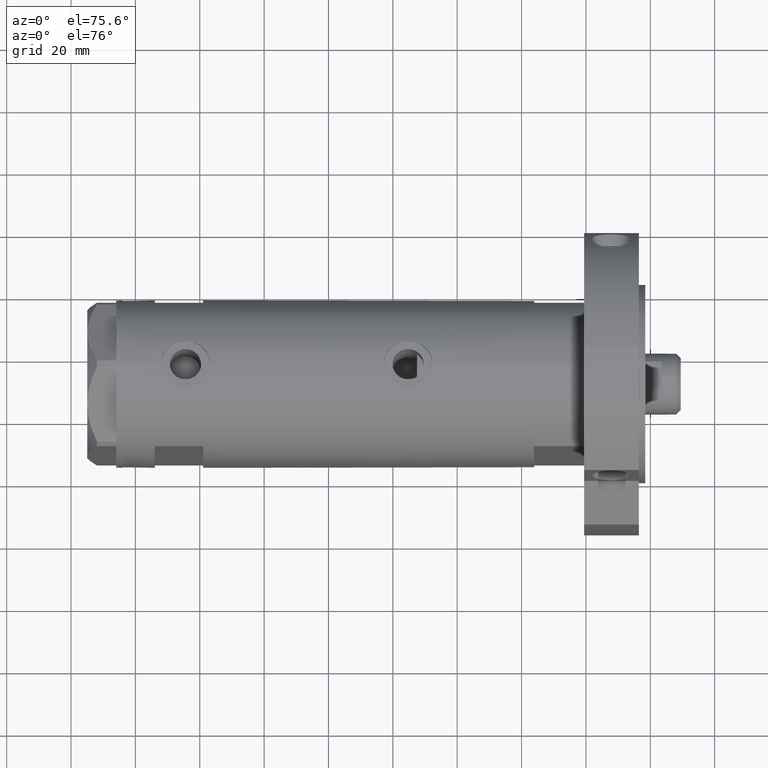
[diagram: clean part render]
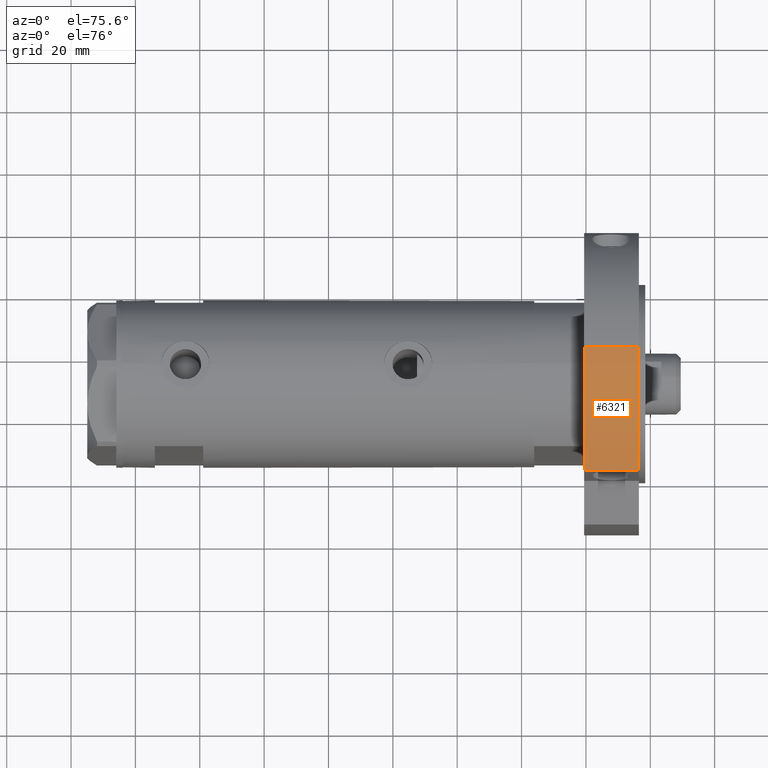
[diagram: same view with one face highlighted and labeled with its STEP entity id]
A machine part, auxiliary view. The second image highlights one B-rep face of the part: STEP entity #6321.
In plain terms, the highlighted cylindrical surface (partial cylindrical patch) has radius 47 mm, axis along (-1, -0, 0).
Its self-contained STEP definition (entity closure, byte-faithful):
#139 = CIRCLE ( 'NONE', #2147, 46.99999999999999289 ) ;
#289 = DIRECTION ( 'NONE',  ( 0.000000000000000000, 0.000000000000000000, 1.000000000000000000 ) ) ;
#409 = VECTOR ( 'NONE', #4820, 1000.000000000000000 ) ;
#616 = ORIENTED_EDGE ( 'NONE', *, *, #2562, .F. ) ;
#650 = CARTESIAN_POINT ( 'NONE',  ( 46.99999999999999289, 5.755839955992559063E-15, 0.000000000000000000 ) ) ;
#700 = ORIENTED_EDGE ( 'NONE', *, *, #6124, .T. ) ;
#813 = VERTEX_POINT ( 'NONE', #2621 ) ;
#1046 = DIRECTION ( 'NONE',  ( -1.000000000000000000, 0.000000000000000000, 0.000000000000000000 ) ) ;
#1356 = LINE ( 'NONE', #5692, #2338 ) ;
#1645 = FACE_OUTER_BOUND ( 'NONE', #3925, .T. ) ;
#1771 = CARTESIAN_POINT ( 'NONE',  ( 30.83217135699462830, 35.47361286101148892, 0.000000000000000000 ) ) ;
#2036 = CARTESIAN_POINT ( 'NONE',  ( 0.000000000000000000, 0.000000000000000000, 17.00000000000000000 ) ) ;
#2096 = CARTESIAN_POINT ( 'NONE',  ( 0.000000000000000000, 0.000000000000000000, 17.00000000000000000 ) ) ;
#2147 = AXIS2_PLACEMENT_3D ( 'NONE', #6253, #289, #5696 ) ;
#2338 = VECTOR ( 'NONE', #3684, 1000.000000000000000 ) ;
#2349 = AXIS2_PLACEMENT_3D ( 'NONE', #2036, #4539, #1046 ) ;
#2401 = AXIS2_PLACEMENT_3D ( 'NONE', #2096, #5683, #5153 ) ;
#2562 = EDGE_CURVE ( 'NONE', #813, #6033, #4369, .T. ) ;
#2605 = EDGE_CURVE ( 'NONE', #4914, #6033, #4295, .T. ) ;
#2621 = CARTESIAN_POINT ( 'NONE',  ( 46.99999999999999289, 5.755839955992559063E-15, 17.00000000000000000 ) ) ;
#2782 = CARTESIAN_POINT ( 'NONE',  ( 30.83217135699462830, 35.47361286101148892, 17.00000000000000000 ) ) ;
#3057 = CYLINDRICAL_SURFACE ( 'NONE', #2349, 46.99999999999999289 ) ;
#3169 = ORIENTED_EDGE ( 'NONE', *, *, #4769, .T. ) ;
#3193 = CARTESIAN_POINT ( 'NONE',  ( 30.83217135699462830, 35.47361286101148892, 0.000000000000000000 ) ) ;
#3684 = DIRECTION ( 'NONE',  ( -0.000000000000000000, -0.000000000000000000, -1.000000000000000000 ) ) ;
#3925 = EDGE_LOOP ( 'NONE', ( #616, #3169, #700, #5611 ) ) ;
#4295 = LINE ( 'NONE', #1771, #409 ) ;
#4369 = CIRCLE ( 'NONE', #2401, 46.99999999999999289 ) ;
#4539 = DIRECTION ( 'NONE',  ( -0.000000000000000000, -0.000000000000000000, -1.000000000000000000 ) ) ;
#4769 = EDGE_CURVE ( 'NONE', #813, #5863, #1356, .T. ) ;
#4820 = DIRECTION ( 'NONE',  ( -0.000000000000000000, -0.000000000000000000, 1.000000000000000000 ) ) ;
#4914 = VERTEX_POINT ( 'NONE', #3193 ) ;
#5153 = DIRECTION ( 'NONE',  ( 1.000000000000000000, 0.000000000000000000, 0.000000000000000000 ) ) ;
#5611 = ORIENTED_EDGE ( 'NONE', *, *, #2605, .T. ) ;
#5683 = DIRECTION ( 'NONE',  ( 0.000000000000000000, 0.000000000000000000, 1.000000000000000000 ) ) ;
#5692 = CARTESIAN_POINT ( 'NONE',  ( 46.99999999999999289, 5.755839955992559063E-15, 17.00000000000000000 ) ) ;
#5696 = DIRECTION ( 'NONE',  ( 1.000000000000000000, 0.000000000000000000, 0.000000000000000000 ) ) ;
#5863 = VERTEX_POINT ( 'NONE', #650 ) ;
#6033 = VERTEX_POINT ( 'NONE', #2782 ) ;
#6124 = EDGE_CURVE ( 'NONE', #5863, #4914, #139, .T. ) ;
#6253 = CARTESIAN_POINT ( 'NONE',  ( 0.000000000000000000, 0.000000000000000000, 0.000000000000000000 ) ) ;
#6321 = ADVANCED_FACE ( 'NONE', ( #1645 ), #3057, .T. ) ;